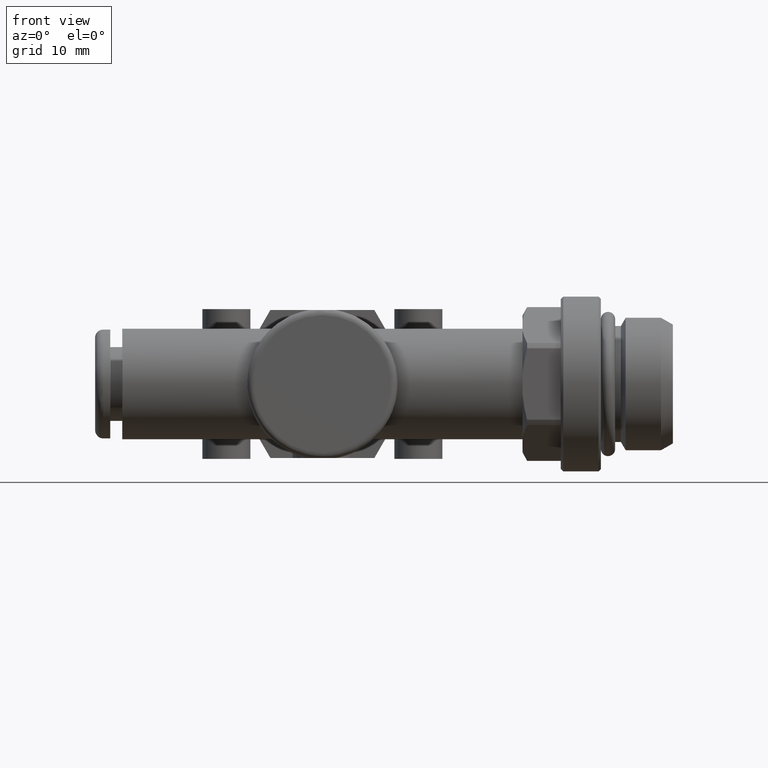
[diagram: clean part render]
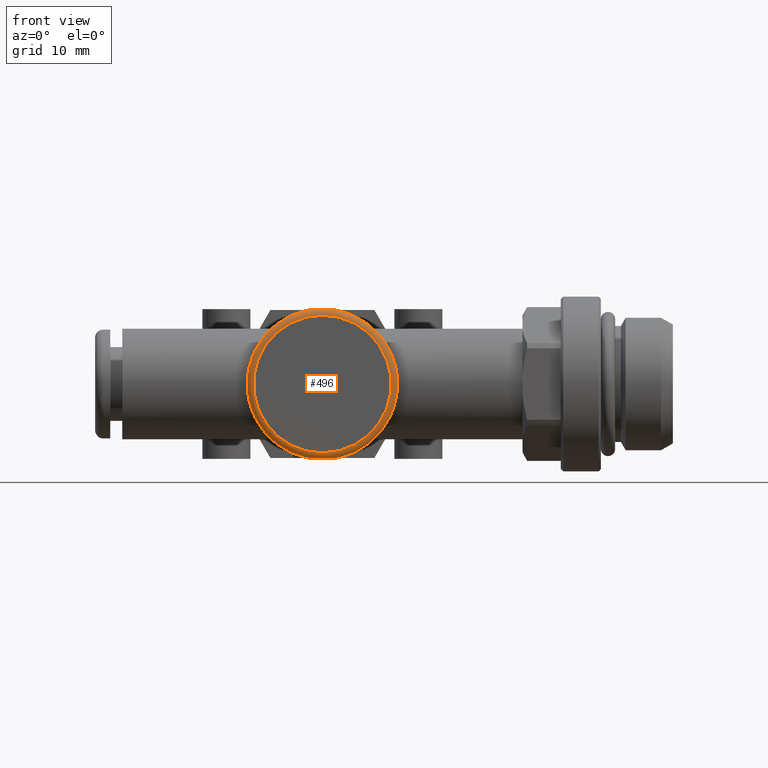
[diagram: same view with one face highlighted and labeled with its STEP entity id]
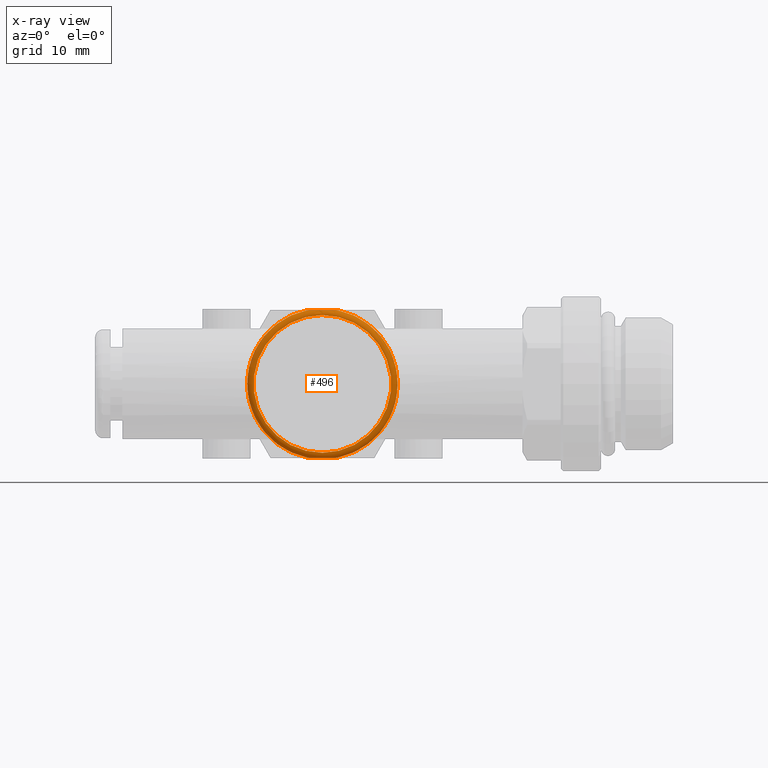
[diagram: x-ray of the same camera — body ghosted, the highlighted face saturated]
A machine part, front view. The second image highlights one B-rep face of the part: STEP entity #496.
The next image is the same camera in x-ray: the body ghosted, the highlighted face saturated — about 0% of this face is hidden behind the body in this view.
In plain terms, the highlighted toroidal blend (fillet) surface has major radius 8.6 mm and minor (blend) radius 0.8 mm.
Its self-contained STEP definition (entity closure, byte-faithful):
#496 = ADVANCED_FACE( '', ( #1063, #1064 ), #1065, .T. );
#1063 = FACE_OUTER_BOUND( '', #1748, .T. );
#1064 = FACE_OUTER_BOUND( '', #1749, .T. );
#1065 = TOROIDAL_SURFACE( '', #1750, 8.60000000000000, 0.800000000000002 );
#1748 = EDGE_LOOP( '', ( #2829, #2830, #2831, #2832 ) );
#1749 = EDGE_LOOP( '', ( #2833 ) );
#1750 = AXIS2_PLACEMENT_3D( '', #2834, #2835, #2836 );
#2829 = ORIENTED_EDGE( '', *, *, #4011, .F. );
#2830 = ORIENTED_EDGE( '', *, *, #4016, .T. );
#2831 = ORIENTED_EDGE( '', *, *, #4017, .F. );
#2832 = ORIENTED_EDGE( '', *, *, #4018, .T. );
#2833 = ORIENTED_EDGE( '', *, *, #3799, .F. );
#2834 = CARTESIAN_POINT( '', ( 0.000000000000000, -8.30000000000000, 0.000000000000000 ) );
#2835 = DIRECTION( '', ( 0.000000000000000, -1.00000000000000, -0.000000000000000 ) );
#2836 = DIRECTION( '', ( 0.000000000000000, 0.000000000000000, -1.00000000000000 ) );
#3799 = EDGE_CURVE( '', #4493, #4493, #4494, .T. );
#4011 = EDGE_CURVE( '', #4814, #4816, #4817, .T. );
#4016 = EDGE_CURVE( '', #4814, #4823, #4824, .T. );
#4017 = EDGE_CURVE( '', #4825, #4823, #4826, .T. );
#4018 = EDGE_CURVE( '', #4825, #4816, #4827, .T. );
#4493 = VERTEX_POINT( '', #5646 );
#4494 = CIRCLE( '', #5647, 8.60000000000000 );
#4814 = VERTEX_POINT( '', #6344 );
#4816 = VERTEX_POINT( '', #6347 );
#4817 = B_SPLINE_CURVE_WITH_KNOTS( '', 3, ( #6348, #6349, #6350, #6351, #6352, #6353, #6354, #6355, #6356, #6357, #6358, #6359, #6360, #6361, #6362, #6363, #6364, #6365, #6366, #6367, #6368, #6369 ), .UNSPECIFIED., .F., .F., ( 4, 2, 2, 2, 2, 2, 2, 2, 2, 2, 4 ), ( 0.00548674398466226, 0.00560066561936967, 0.00571458725407708, 0.00594243052349190, 0.00639811706232154, 0.00730949013998081, 0.00822086321764009, 0.00867654975646972, 0.00890439302588454, 0.00901831466059195, 0.00913223629529936 ), .UNSPECIFIED. );
#4823 = VERTEX_POINT( '', #6377 );
#4824 = CIRCLE( '', #6378, 9.40000000000000 );
#4825 = VERTEX_POINT( '', #6379 );
#4826 = B_SPLINE_CURVE_WITH_KNOTS( '', 3, ( #6380, #6381, #6382, #6383, #6384, #6385, #6386, #6387, #6388, #6389, #6390, #6391, #6392, #6393, #6394, #6395, #6396, #6397, #6398, #6399, #6400, #6401 ), .UNSPECIFIED., .F., .F., ( 4, 2, 2, 2, 2, 2, 2, 2, 2, 2, 4 ), ( 0.00548674398466226, 0.00560066561936967, 0.00571458725407708, 0.00594243052349190, 0.00639811706232154, 0.00730949013998081, 0.00822086321764009, 0.00867654975646972, 0.00890439302588454, 0.00901831466059195, 0.00913223629529936 ), .UNSPECIFIED. );
#4827 = CIRCLE( '', #6402, 9.40000000000000 );
#5646 = CARTESIAN_POINT( '', ( 0.000000000000000, -9.10000000000000, -8.60000000000000 ) );
#5647 = AXIS2_PLACEMENT_3D( '', #7021, #7022, #7023 );
#6344 = CARTESIAN_POINT( '', ( 1.67257286836778, -8.30000000000000, -9.25000000000000 ) );
#6347 = CARTESIAN_POINT( '', ( -1.67257286836870, -8.30000000000078, -9.25000000000000 ) );
#6348 = CARTESIAN_POINT( '', ( 1.67257286837443, -8.29999999999996, -9.25000000000000 ) );
#6349 = CARTESIAN_POINT( '', ( 1.67257286837444, -8.33806728583355, -9.25000000000000 ) );
#6350 = CARTESIAN_POINT( '', ( 1.65587314777277, -8.37549144049542, -9.25000000000000 ) );
#6351 = CARTESIAN_POINT( '', ( 1.60943639738337, -8.43601463646205, -9.25000000000000 ) );
#6352 = CARTESIAN_POINT( '', ( 1.57983493554609, -8.46129566916637, -9.25000000000000 ) );
#6353 = CARTESIAN_POINT( '', ( 1.48650135326004, -8.52683194244745, -9.25000000000000 ) );
#6354 = CARTESIAN_POINT( '', ( 1.41625161918915, -8.55876215565025, -9.25000000000000 ) );
#6355 = CARTESIAN_POINT( '', ( 1.20450962645265, -8.63859459409826, -9.25000000000000 ) );
#6356 = CARTESIAN_POINT( '', ( 1.05599758131416, -8.67191149100260, -9.25000000000000 ) );
#6357 = CARTESIAN_POINT( '', ( 0.608813987277906, -8.74816739329717, -9.25000000000001 ) );
#6358 = CARTESIAN_POINT( '', ( 0.307768663372542, -8.76613227286528, -9.25000000000000 ) );
#6359 = CARTESIAN_POINT( '', ( -0.297475030797506, -8.76660164108544, -9.25000000000000 ) );
#6360 = CARTESIAN_POINT( '', ( -0.603875096460102, -8.74870138543589, -9.25000000000000 ) );
#6361 = CARTESIAN_POINT( '', ( -1.05303643696222, -8.67256776467147, -9.25000000000000 ) );
#6362 = CARTESIAN_POINT( '', ( -1.20095642052042, -8.63971541027620, -9.25000000000000 ) );
#6363 = CARTESIAN_POINT( '', ( -1.41531726153773, -8.55922178759227, -9.25000000000000 ) );
#6364 = CARTESIAN_POINT( '', ( -1.48562053223312, -8.52739280964452, -9.25000000000000 ) );
#6365 = CARTESIAN_POINT( '', ( -1.57985642235266, -8.46130920047564, -9.25000000000000 ) );
#6366 = CARTESIAN_POINT( '', ( -1.60935039700309, -8.43612464844256, -9.25000000000000 ) );
#6367 = CARTESIAN_POINT( '', ( -1.65594873919592, -8.37539499454185, -9.25000000000000 ) );
#6368 = CARTESIAN_POINT( '', ( -1.67257286836781, -8.33824448453661, -9.25000000000000 ) );
#6369 = CARTESIAN_POINT( '', ( -1.67257286836803, -8.30000000000083, -9.25000000000000 ) );
#6377 = CARTESIAN_POINT( '', ( 1.67257286836870, -8.30000000000078, 9.25000000000000 ) );
#6378 = AXIS2_PLACEMENT_3D( '', #7278, #7279, #7280 );
#6379 = CARTESIAN_POINT( '', ( -1.67257286836778, -8.30000000000000, 9.25000000000000 ) );
#6380 = CARTESIAN_POINT( '', ( -1.67257286837443, -8.29999999999996, 9.25000000000000 ) );
#6381 = CARTESIAN_POINT( '', ( -1.67257286837444, -8.33806728583355, 9.25000000000000 ) );
#6382 = CARTESIAN_POINT( '', ( -1.65587314777277, -8.37549144049542, 9.25000000000000 ) );
#6383 = CARTESIAN_POINT( '', ( -1.60943639738337, -8.43601463646205, 9.25000000000000 ) );
#6384 = CARTESIAN_POINT( '', ( -1.57983493554609, -8.46129566916637, 9.25000000000000 ) );
#6385 = CARTESIAN_POINT( '', ( -1.48650135326004, -8.52683194244745, 9.25000000000000 ) );
#6386 = CARTESIAN_POINT( '', ( -1.41625161918915, -8.55876215565025, 9.25000000000000 ) );
#6387 = CARTESIAN_POINT( '', ( -1.20450962645265, -8.63859459409826, 9.25000000000000 ) );
#6388 = CARTESIAN_POINT( '', ( -1.05599758131416, -8.67191149100260, 9.25000000000000 ) );
#6389 = CARTESIAN_POINT( '', ( -0.608813987277906, -8.74816739329717, 9.25000000000001 ) );
#6390 = CARTESIAN_POINT( '', ( -0.307768663372542, -8.76613227286528, 9.25000000000000 ) );
#6391 = CARTESIAN_POINT( '', ( 0.297475030797506, -8.76660164108544, 9.25000000000000 ) );
#6392 = CARTESIAN_POINT( '', ( 0.603875096460102, -8.74870138543589, 9.25000000000000 ) );
#6393 = CARTESIAN_POINT( '', ( 1.05303643696222, -8.67256776467147, 9.25000000000000 ) );
#6394 = CARTESIAN_POINT( '', ( 1.20095642052042, -8.63971541027620, 9.25000000000000 ) );
#6395 = CARTESIAN_POINT( '', ( 1.41531726153773, -8.55922178759227, 9.25000000000000 ) );
#6396 = CARTESIAN_POINT( '', ( 1.48562053223312, -8.52739280964452, 9.25000000000000 ) );
#6397 = CARTESIAN_POINT( '', ( 1.57985642235266, -8.46130920047564, 9.25000000000000 ) );
#6398 = CARTESIAN_POINT( '', ( 1.60935039700309, -8.43612464844256, 9.25000000000000 ) );
#6399 = CARTESIAN_POINT( '', ( 1.65594873919592, -8.37539499454185, 9.25000000000000 ) );
#6400 = CARTESIAN_POINT( '', ( 1.67257286836781, -8.33824448453661, 9.25000000000000 ) );
#6401 = CARTESIAN_POINT( '', ( 1.67257286836803, -8.30000000000083, 9.25000000000000 ) );
#6402 = AXIS2_PLACEMENT_3D( '', #7281, #7282, #7283 );
#7021 = CARTESIAN_POINT( '', ( 0.000000000000000, -9.10000000000000, 0.000000000000000 ) );
#7022 = DIRECTION( '', ( 0.000000000000000, -1.00000000000000, -0.000000000000000 ) );
#7023 = DIRECTION( '', ( 0.000000000000000, 0.000000000000000, -1.00000000000000 ) );
#7278 = CARTESIAN_POINT( '', ( 0.000000000000000, -8.30000000000000, 0.000000000000000 ) );
#7279 = DIRECTION( '', ( 0.000000000000000, -1.00000000000000, -0.000000000000000 ) );
#7280 = DIRECTION( '', ( 0.000000000000000, 0.000000000000000, -1.00000000000000 ) );
#7281 = CARTESIAN_POINT( '', ( 0.000000000000000, -8.30000000000000, 0.000000000000000 ) );
#7282 = DIRECTION( '', ( 0.000000000000000, -1.00000000000000, -0.000000000000000 ) );
#7283 = DIRECTION( '', ( 0.000000000000000, 0.000000000000000, -1.00000000000000 ) );